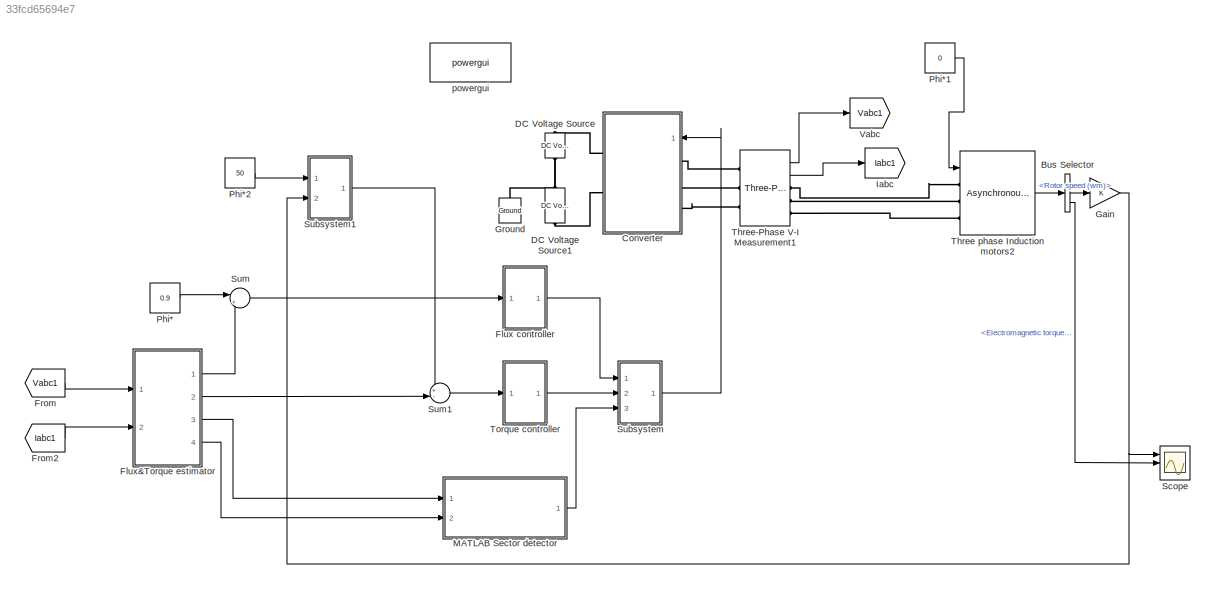
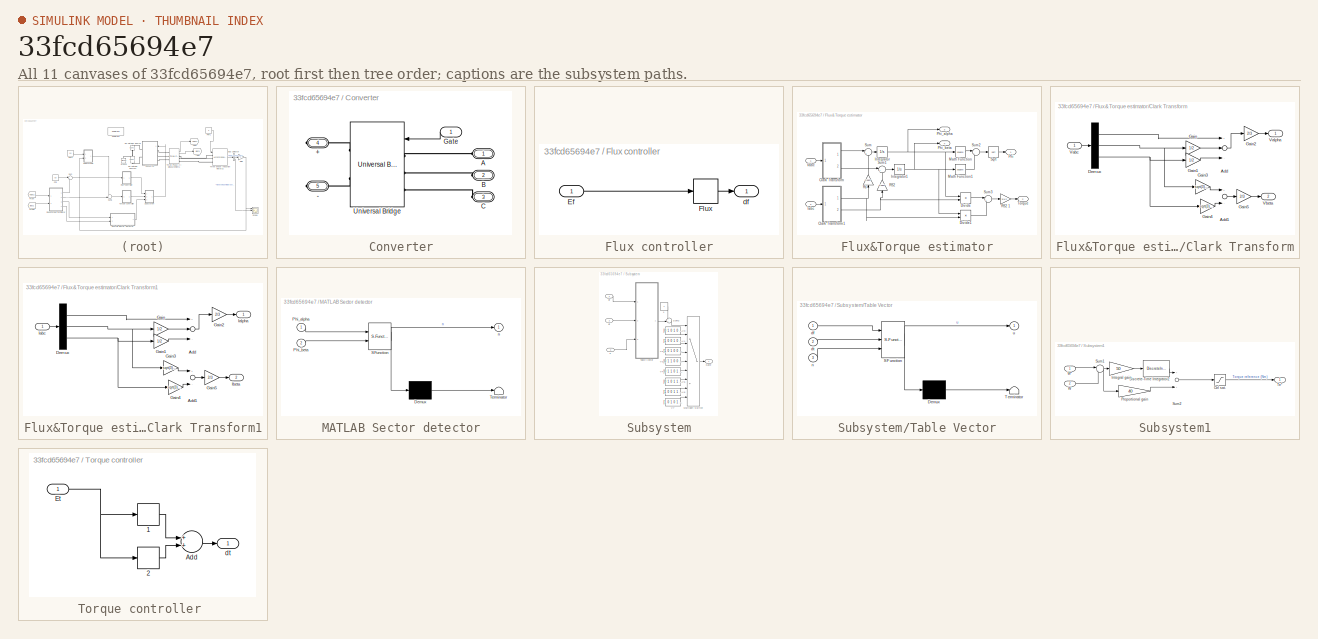
[diagram: thumbnail index - all 11 canvases of the model, root first then tree order]
MODEL slx_33fcd65694e7
KIND model
BLOCK [BusSelector] Bus Selector
  OutputSignals = Stator measurements.Stator current is_a (A),Mechanical.Rotor speed (wm),Mechanical.Electromagnetic torque Te (N*m)
  Ports = [1, 3]
BLOCK [SubSystem] Converter
  FunctionWithSeparateData = off
  MaskHideContents = off
  MinAlgLoopOccurrences = off
  Opaque = off
  Ports = [1, 0, 0, 0, 0, 3, 2]
  PropExecContextOutsideSubsystem = off
  RTWSystemCode = Auto
  RequestExecContextInheritance = off
  Variant = off
BLOCK [PMIOPort] Converter/+
  Port = 4
  Side = Right
BLOCK [PMIOPort] Converter/-
  Port = 5
  Side = Right
BLOCK [PMIOPort] Converter/A
  Port = 1
  Side = Left
BLOCK [PMIOPort] Converter/B
  Port = 2
  Side = Left
BLOCK [PMIOPort] Converter/C
  Port = 3
  Side = Left
BLOCK [Inport] Converter/Gate 
  IconDisplay = Port number
BLOCK [Reference] Converter/Universal Bridge  REF=powerlib/Power
Electronics/Universal Bridge
  Arms = 3
  Device = IGBT / Diodes
  ForwardVoltage = 0
  ForwardVoltages = [  0  0  ]
  GTOparameters = [ 10e-6 , 20e-6 ]
  IGBTparameters = [ 1e-6 , 2e-6 ]
  Lon = 0
  Measurements = None
  Measurements_2 = None
  Ports = [1, 0, 0, 0, 0, 3, 2]
  Ron = 1e-3
  SnubberCapacitance = inf
  SnubberResistance = 1e5
  SourceBlock = powerlib/Power\nElectronics/Universal Bridge
  SourceType = Universal Bridge
  converterType = Rectifier
BLOCK [Reference] DC Voltage Source  REF=powerlib/Electrical
Sources/DC Voltage Source
  Amplitude = 250
  Measurements = None
  Ports = [0, 0, 0, 0, 0, 1, 1]
  SourceBlock = powerlib/Electrical\nSources/DC Voltage Source
  SourceType = DC Voltage Source
BLOCK [Reference] DC Voltage Source1  REF=powerlib/Electrical
Sources/DC Voltage Source
  Amplitude = 250
  Measurements = None
  Ports = [0, 0, 0, 0, 0, 1, 1]
  SourceBlock = powerlib/Electrical\nSources/DC Voltage Source
  SourceType = DC Voltage Source
BLOCK [SubSystem] Flux controller
  FunctionWithSeparateData = off
  MaskHideContents = off
  MinAlgLoopOccurrences = off
  Opaque = off
  Ports = [1, 1]
  PropExecContextOutsideSubsystem = off
  RTWSystemCode = Auto
  RequestExecContextInheritance = off
  Variant = off
BLOCK [Inport] Flux controller/Ef
  IconDisplay = Port number
BLOCK [Relay] Flux controller/Flux
  InputProcessing = Elements as channels (sample based)
  OffSwitchValue = -0.005
  OnSwitchValue = 0.005
BLOCK [Outport] Flux controller/df
  IconDisplay = Port number
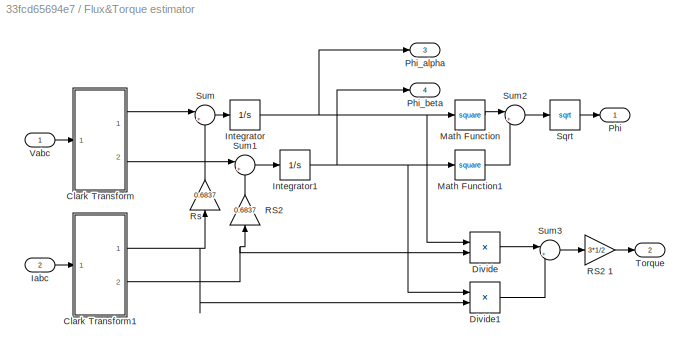
BLOCK [SubSystem] Flux&Torque estimator
  FunctionWithSeparateData = off
  MaskHideContents = off
  MinAlgLoopOccurrences = off
  Opaque = off
  Ports = [2, 4]
  PropExecContextOutsideSubsystem = off
  RTWSystemCode = Auto
  RequestExecContextInheritance = off
  Variant = off
BLOCK [SubSystem] Flux&Torque estimator/Clark Transform
  FunctionWithSeparateData = off
  MaskHideContents = off
  MinAlgLoopOccurrences = off
  Opaque = off
  Ports = [1, 2]
  PropExecContextOutsideSubsystem = off
  RTWSystemCode = Auto
  RequestExecContextInheritance = off
  Variant = off
BLOCK [Sum] Flux&Torque estimator/Clark Transform/Add
  InputSameDT = off
  Inputs = +--
  OutDataTypeStr = Inherit: Inherit via internal rule
  Ports = [3, 1]
  SaturateOnIntegerOverflow = off
BLOCK [Sum] Flux&Torque estimator/Clark Transform/Add1
  InputSameDT = off
  Inputs = +-
  OutDataTypeStr = Inherit: Inherit via internal rule
  Ports = [2, 1]
  SaturateOnIntegerOverflow = off
BLOCK [Demux] Flux&Torque estimator/Clark Transform/Demux
  DisplayOption = bar
  Outputs = 3
  Ports = [1, 3]
BLOCK [Gain] Flux&Torque estimator/Clark Transform/Gain
  Gain = 1/2
  OutDataTypeStr = Inherit: Inherit via internal rule
  ParamDataTypeStr = Inherit: Inherit via internal rule
  SaturateOnIntegerOverflow = off
BLOCK [Gain] Flux&Torque estimator/Clark Transform/Gain1
  Gain = 1/2
  OutDataTypeStr = Inherit: Inherit via internal rule
  ParamDataTypeStr = Inherit: Inherit via internal rule
  SaturateOnIntegerOverflow = off
BLOCK [Gain] Flux&Torque estimator/Clark Transform/Gain2
  Gain = 2/3
  OutDataTypeStr = Inherit: Inherit via internal rule
  ParamDataTypeStr = Inherit: Inherit via internal rule
  SaturateOnIntegerOverflow = off
BLOCK [Gain] Flux&Torque estimator/Clark Transform/Gain3
  Gain = sqrt(3)/2
  OutDataTypeStr = Inherit: Inherit via internal rule
  ParamDataTypeStr = Inherit: Inherit via internal rule
  SaturateOnIntegerOverflow = off
BLOCK [Gain] Flux&Torque estimator/Clark Transform/Gain4
  Gain = sqrt(3)/2
  OutDataTypeStr = Inherit: Inherit via internal rule
  ParamDataTypeStr = Inherit: Inherit via internal rule
  SaturateOnIntegerOverflow = off
BLOCK [Gain] Flux&Torque estimator/Clark Transform/Gain5
  Gain = 2/3
  OutDataTypeStr = Inherit: Inherit via internal rule
  ParamDataTypeStr = Inherit: Inherit via internal rule
  SaturateOnIntegerOverflow = off
BLOCK [Inport] Flux&Torque estimator/Clark Transform/Vabc
  IconDisplay = Port number
BLOCK [Outport] Flux&Torque estimator/Clark Transform/Valpha
  IconDisplay = Port number
BLOCK [Outport] Flux&Torque estimator/Clark Transform/Vbeta 
  IconDisplay = Port number
  Port = 2
BLOCK [SubSystem] Flux&Torque estimator/Clark Transform1
  FunctionWithSeparateData = off
  MaskHideContents = off
  MinAlgLoopOccurrences = off
  Opaque = off
  Ports = [1, 2]
  PropExecContextOutsideSubsystem = off
  RTWSystemCode = Auto
  RequestExecContextInheritance = off
  Variant = off
BLOCK [Sum] Flux&Torque estimator/Clark Transform1/Add
  InputSameDT = off
  Inputs = +--
  OutDataTypeStr = Inherit: Inherit via internal rule
  Ports = [3, 1]
  SaturateOnIntegerOverflow = off
BLOCK [Sum] Flux&Torque estimator/Clark Transform1/Add1
  InputSameDT = off
  Inputs = +-
  OutDataTypeStr = Inherit: Inherit via internal rule
  Ports = [2, 1]
  SaturateOnIntegerOverflow = off
BLOCK [Demux] Flux&Torque estimator/Clark Transform1/Demux
  DisplayOption = bar
  Outputs = 3
  Ports = [1, 3]
BLOCK [Gain] Flux&Torque estimator/Clark Transform1/Gain
  Gain = 1/2
  OutDataTypeStr = Inherit: Inherit via internal rule
  ParamDataTypeStr = Inherit: Inherit via internal rule
  SaturateOnIntegerOverflow = off
BLOCK [Gain] Flux&Torque estimator/Clark Transform1/Gain1
  Gain = 1/2
  OutDataTypeStr = Inherit: Inherit via internal rule
  ParamDataTypeStr = Inherit: Inherit via internal rule
  SaturateOnIntegerOverflow = off
BLOCK [Gain] Flux&Torque estimator/Clark Transform1/Gain2
  Gain = 2/3
  OutDataTypeStr = Inherit: Inherit via internal rule
  ParamDataTypeStr = Inherit: Inherit via internal rule
  SaturateOnIntegerOverflow = off
BLOCK [Gain] Flux&Torque estimator/Clark Transform1/Gain3
  Gain = sqrt(3)/2
  OutDataTypeStr = Inherit: Inherit via internal rule
  ParamDataTypeStr = Inherit: Inherit via internal rule
  SaturateOnIntegerOverflow = off
BLOCK [Gain] Flux&Torque estimator/Clark Transform1/Gain4
  Gain = sqrt(3)/2
  OutDataTypeStr = Inherit: Inherit via internal rule
  ParamDataTypeStr = Inherit: Inherit via internal rule
  SaturateOnIntegerOverflow = off
BLOCK [Gain] Flux&Torque estimator/Clark Transform1/Gain5
  Gain = 2/3
  OutDataTypeStr = Inherit: Inherit via internal rule
  ParamDataTypeStr = Inherit: Inherit via internal rule
  SaturateOnIntegerOverflow = off
BLOCK [Inport] Flux&Torque estimator/Clark Transform1/Iabc
  IconDisplay = Port number
BLOCK [Outport] Flux&Torque estimator/Clark Transform1/Ialpha
  IconDisplay = Port number
BLOCK [Outport] Flux&Torque estimator/Clark Transform1/Ibeta 
  IconDisplay = Port number
  Port = 2
BLOCK [Product] Flux&Torque estimator/Divide
  InputSameDT = off
  Inputs = **
  OutDataTypeStr = Inherit: Inherit via internal rule
  Ports = [2, 1]
  RndMeth = Floor
  SaturateOnIntegerOverflow = off
BLOCK [Product] Flux&Torque estimator/Divide1
  InputSameDT = off
  Inputs = **
  OutDataTypeStr = Inherit: Inherit via internal rule
  Ports = [2, 1]
  RndMeth = Floor
  SaturateOnIntegerOverflow = off
BLOCK [Inport] Flux&Torque estimator/Iabc
  IconDisplay = Port number
  Port = 2
BLOCK [Integrator] Flux&Torque estimator/Integrator
  Ports = [1, 1]
BLOCK [Integrator] Flux&Torque estimator/Integrator1
  Ports = [1, 1]
BLOCK [Math] Flux&Torque estimator/Math Function
  Operator = square
  Ports = [1, 1]
BLOCK [Math] Flux&Torque estimator/Math Function1
  Operator = square
  Ports = [1, 1]
BLOCK [Outport] Flux&Torque estimator/Phi
  IconDisplay = Port number
BLOCK [Outport] Flux&Torque estimator/Phi_alpha
  IconDisplay = Port number
  Port = 3
BLOCK [Outport] Flux&Torque estimator/Phi_beta
  IconDisplay = Port number
  Port = 4
BLOCK [Gain] Flux&Torque estimator/RS2 
  Gain = 0.6837
  OutDataTypeStr = Inherit: Inherit via internal rule
  ParamDataTypeStr = Inherit: Inherit via internal rule
  SaturateOnIntegerOverflow = off
BLOCK [Gain] Flux&Torque estimator/RS2 1
  Gain = 3*1/2
  OutDataTypeStr = Inherit: Inherit via internal rule
  ParamDataTypeStr = Inherit: Inherit via internal rule
  SaturateOnIntegerOverflow = off
BLOCK [Gain] Flux&Torque estimator/Rs
  Gain = 0.6837
  OutDataTypeStr = Inherit: Inherit via internal rule
  ParamDataTypeStr = Inherit: Inherit via internal rule
  SaturateOnIntegerOverflow = off
BLOCK [Sqrt] Flux&Torque estimator/Sqrt
BLOCK [Sum] Flux&Torque estimator/Sum
  IconShape = round
  InputSameDT = off
  Inputs = |+-
  OutDataTypeStr = Inherit: Inherit via internal rule
  Ports = [2, 1]
  SaturateOnIntegerOverflow = off
BLOCK [Sum] Flux&Torque estimator/Sum1
  IconShape = round
  InputSameDT = off
  Inputs = |+-
  OutDataTypeStr = Inherit: Inherit via internal rule
  Ports = [2, 1]
  SaturateOnIntegerOverflow = off
BLOCK [Sum] Flux&Torque estimator/Sum2
  IconShape = round
  InputSameDT = off
  Inputs = |++
  OutDataTypeStr = Inherit: Inherit via internal rule
  Ports = [2, 1]
  SaturateOnIntegerOverflow = off
BLOCK [Sum] Flux&Torque estimator/Sum3
  IconShape = round
  InputSameDT = off
  Inputs = |+-
  OutDataTypeStr = Inherit: Inherit via internal rule
  Ports = [2, 1]
  SaturateOnIntegerOverflow = off
BLOCK [Outport] Flux&Torque estimator/Torque
  IconDisplay = Port number
  Port = 2
BLOCK [Inport] Flux&Torque estimator/Vabc
  IconDisplay = Port number
BLOCK [From] From
  GotoTag = Vabc1
BLOCK [From] From2
  GotoTag = Iabc1
BLOCK [Gain] Gain
  OutDataTypeStr = Inherit: Inherit via internal rule
  ParamDataTypeStr = Inherit: Inherit via internal rule
  SaturateOnIntegerOverflow = off
BLOCK [Reference] Ground  REF=powerlib/Elements/Ground
  LConnTagsString = a
  Ports = [0, 0, 0, 0, 0, 1]
  SourceBlock = powerlib/Elements/Ground
  SourceType = Ground
BLOCK [Goto] Iabc
  GotoTag = Iabc1
BLOCK [SubSystem] MATLAB Sector detector
  ErrorFcn = Stateflow.Translate.translate
  FunctionWithSeparateData = off
  MaskHideContents = off
  MinAlgLoopOccurrences = off
  Opaque = off
  PermitHierarchicalResolution = ParametersOnly
  Ports = [2, 1]
  PropExecContextOutsideSubsystem = off
  RTWSystemCode = Auto
  RequestExecContextInheritance = off
  SFBlockType = MATLAB Function
  TreatAsAtomicUnit = on
  Variant = off
BLOCK [Demux] MATLAB Sector detector/ Demux 
  Outputs = 1
  Ports = [1, 1]
BLOCK [S-Function] MATLAB Sector detector/ SFunction 
  EnableBusSupport = on
  FunctionName = sf_sfun
  PortCounts = [2 2]
  Ports = [2, 2]
  SFunctionDeploymentMode = off
  Tag = Stateflow S-Function untitled2013a 2
BLOCK [Terminator] MATLAB Sector detector/ Terminator 
BLOCK [Inport] MATLAB Sector detector/Phi_alpha
  IconDisplay = Port number
BLOCK [Inport] MATLAB Sector detector/Phi_beta
  IconDisplay = Port number
  Port = 2
BLOCK [Outport] MATLAB Sector detector/n
  IconDisplay = Port number
BLOCK [Constant] Phi*
  Value = 0.9
BLOCK [Constant] Phi*1
  Value = 0
BLOCK [Constant] Phi*2
  Value = 50
BLOCK [Scope] Scope
  DataFormat = StructureWithTime
  Decimation = 1
  Grid = on
  LimitDataPoints = off
  MaxDataPoints = 5000
  NumInputPorts = 3
  Ports = [3]
  SampleInput = off
  SampleTime = -1
  SaveName = ScopeData
  SaveToWorkspace = on
  ShowLegends = off
  TickLabels = OneTimeTick
  TimeRange = auto
  YMax = 144.23311~146.13243~1.00000
  YMin = -16.0259~-157.28143~-1.00000
  ZoomMode = on
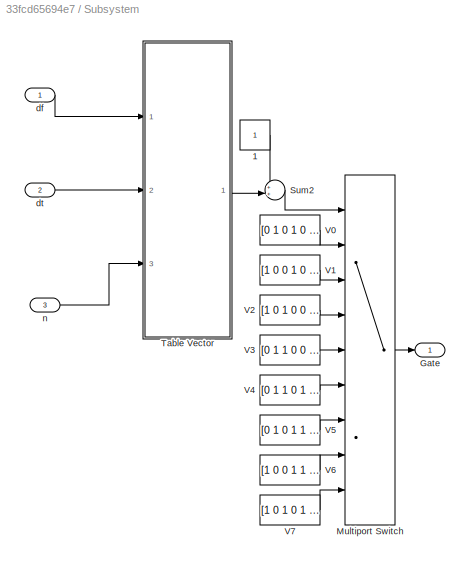
BLOCK [SubSystem] Subsystem
  FunctionWithSeparateData = off
  MaskHideContents = off
  MinAlgLoopOccurrences = off
  Opaque = off
  Ports = [3, 1]
  PropExecContextOutsideSubsystem = off
  RTWSystemCode = Auto
  RequestExecContextInheritance = off
  Variant = off
BLOCK [Constant] Subsystem/1
BLOCK [Outport] Subsystem/Gate
  IconDisplay = Port number
BLOCK [MultiPortSwitch] Subsystem/Multiport Switch
  InputSameDT = off
  Inputs = 8
  Ports = [9, 1]
  SaturateOnIntegerOverflow = off
BLOCK [Sum] Subsystem/Sum2
  IconShape = round
  InputSameDT = off
  Inputs = ++|
  OutDataTypeStr = Inherit: Inherit via internal rule
  Ports = [2, 1]
  SaturateOnIntegerOverflow = off
BLOCK [SubSystem] Subsystem/Table Vector
  ErrorFcn = Stateflow.Translate.translate
  FunctionWithSeparateData = off
  MaskHideContents = off
  MinAlgLoopOccurrences = off
  Opaque = off
  PermitHierarchicalResolution = ParametersOnly
  Ports = [3, 1]
  PropExecContextOutsideSubsystem = off
  RTWSystemCode = Auto
  RequestExecContextInheritance = off
  SFBlockType = MATLAB Function
  TreatAsAtomicUnit = on
  Variant = off
BLOCK [Demux] Subsystem/Table Vector/ Demux 
  Outputs = 1
  Ports = [1, 1]
BLOCK [S-Function] Subsystem/Table Vector/ SFunction 
  EnableBusSupport = on
  FunctionName = sf_sfun
  PortCounts = [3 2]
  Ports = [3, 2]
  SFunctionDeploymentMode = off
  Tag = Stateflow S-Function untitled2013a 1
BLOCK [Terminator] Subsystem/Table Vector/ Terminator 
BLOCK [Inport] Subsystem/Table Vector/df
  IconDisplay = Port number
BLOCK [Inport] Subsystem/Table Vector/dt
  IconDisplay = Port number
  Port = 2
BLOCK [Inport] Subsystem/Table Vector/n
  IconDisplay = Port number
  Port = 3
BLOCK [Outport] Subsystem/Table Vector/u
  IconDisplay = Port number
BLOCK [Constant] Subsystem/V0
  Value = [0 1 0 1 0 1]
BLOCK [Constant] Subsystem/V1
  Value = [1 0 0 1 0 1]
BLOCK [Constant] Subsystem/V2
  Value = [1 0 1 0 0 1]
BLOCK [Constant] Subsystem/V3 
  Value = [0 1 1 0 0 1]
BLOCK [Constant] Subsystem/V4
  Value = [0 1 1 0 1 0]
BLOCK [Constant] Subsystem/V5
  Value = [0 1 0 1 1 0]
BLOCK [Constant] Subsystem/V6
  Value = [1 0 0 1 1 0]
BLOCK [Constant] Subsystem/V7
  Value = [1 0 1 0 1 0]
BLOCK [Inport] Subsystem/df
  IconDisplay = Port number
BLOCK [Inport] Subsystem/dt
  IconDisplay = Port number
  Port = 2
BLOCK [Inport] Subsystem/n
  IconDisplay = Port number
  Port = 3
BLOCK [SubSystem] Subsystem1
  FunctionWithSeparateData = off
  MaskHideContents = off
  MinAlgLoopOccurrences = off
  Opaque = off
  Ports = [2, 1]
  PropExecContextOutsideSubsystem = off
  RTWSystemCode = Auto
  RequestExecContextInheritance = off
  Variant = off
BLOCK [Saturate] Subsystem1/Ctrl sat.
  InputPortMap = u0
  LowerLimit = -2000
  Ports = [1, 1]
  UpperLimit = 1e6
BLOCK [DiscreteIntegrator] Subsystem1/Discrete-Time Integrator2
  ICPrevOutput = DiscIntNeverNeededParam
  ICPrevScaledInput = DiscIntNeverNeededParam
  IntegratorMethod = Integration: Trapezoidal
  LowerSaturationLimit = ctrl_sat(1)
  Ports = [1, 1]
  SampleTime = -1
  UpperSaturationLimit = ctrl_sat(2)
BLOCK [Gain] Subsystem1/Integral gain
  Gain = 50
BLOCK [Gain] Subsystem1/Proportional gain
  Gain = 40
BLOCK [Sum] Subsystem1/Sum1
  IconShape = round
  Inputs = |+-
  Ports = [2, 1]
BLOCK [Sum] Subsystem1/Sum2
  Ports = [2, 1]
BLOCK [Outport] Subsystem1/Te*
  IconDisplay = Port number
BLOCK [Inport] Subsystem1/W
  IconDisplay = Port number
  Port = 2
BLOCK [Inport] Subsystem1/W*
  IconDisplay = Port number
BLOCK [Sum] Sum
  IconShape = round
  InputSameDT = off
  Inputs = |+-
  OutDataTypeStr = Inherit: Inherit via internal rule
  Ports = [2, 1]
  SaturateOnIntegerOverflow = off
BLOCK [Sum] Sum1
  IconShape = round
  InputSameDT = off
  Inputs = +-|
  OutDataTypeStr = Inherit: Inherit via internal rule
  Ports = [2, 1]
  SaturateOnIntegerOverflow = off
BLOCK [Reference] Three phase Induction motors2  REF=powerlib/Machines/Asynchronous Machine
SI Units
  Cage1 = [0.4155 0.002066]
  Cage2 = [0.4168 0.0003495]
  InitialConditions = [1 0 0 0 0 0 0 0]
  IterativeDiscreteModel = Trapezoidal iterative (alg. loop)
  IterativeModel = Trapezoidal non iterative
  Lm = 0.1486
  LoadFlowParameters = 1492000
  MeasurementBus = off
  Mechanical = [0.05 0.02791 1]
  MechanicalLoad = Torque Tm
  NominalParameters = [500000 460 60]
  Pmec = 1.492e+006
  PolePairs = 2
  Ports = [1, 1, 0, 0, 0, 3]
  PresetModel = No
  ReferenceFrame = Rotor
  Rotor = [0.451 0.004152]
  RotorType = Squirrel-cage
  Saturation = [14.03593122, 27.81365428, 53.79336849, 72.68890987, 97.98006896, 148.6815601, 215.7428561, 302.9841135, 428.7778367 ; 230, 322, 414, 460, 506, 552, 598, 644, 690]
  ShowDetailedParameters = on
  SimulateSaturation = off
  SourceBlock = powerlib/Machines/Asynchronous Machine\nSI Units
  SourceType = Asynchronous Machine
  Stator = [0.6837 0.004152]
  TsBlock = 2*10^-6
  TsPowergui = 0
  Units = SI
BLOCK [Reference] Three-Phase V-I Measurement1  REF=powerlib/Measurements/Three-Phase
V-I Measurement
  CurrentMeasurement = yes
  Ipu = off
  LabelI = Iabc
  LabelV = Vabc
  OutputType = Complex
  PSBequivalent = 0
  Pbase = 100e6
  PhasorSimulation = off
  Ports = [0, 2, 0, 0, 0, 3, 3]
  SetLabelI = off
  SetLabelV = off
  SourceBlock = powerlib/Measurements/Three-Phase\nV-I Measurement
  SourceType = Three-Phase VI Measurement
  Vbase = 500e3
  VoltageMeasurement = phase-to-ground
  Vpu = off
  VpuLL = off
BLOCK [SubSystem] Torque controller 
  FunctionWithSeparateData = off
  MaskHideContents = off
  MinAlgLoopOccurrences = off
  Opaque = off
  Ports = [1, 1]
  PropExecContextOutsideSubsystem = off
  RTWSystemCode = Auto
  RequestExecContextInheritance = off
  Variant = off
BLOCK [Relay] Torque controller /1 
  InputProcessing = Elements as channels (sample based)
  OffSwitchValue = 0
  OnSwitchValue = 1
BLOCK [Relay] Torque controller /2
  InputProcessing = Elements as channels (sample based)
  OffOutputValue = -1
  OffSwitchValue = -1
  OnOutputValue = 0
  OnSwitchValue = 0
BLOCK [Sum] Torque controller /Add
  InputSameDT = off
  OutDataTypeStr = Inherit: Inherit via internal rule
  Ports = [2, 1]
  SaturateOnIntegerOverflow = off
BLOCK [Inport] Torque controller /Et
  IconDisplay = Port number
BLOCK [Outport] Torque controller /dt
  IconDisplay = Port number
BLOCK [Goto] Vabc
  GotoTag = Vabc1
BLOCK [Reference] powergui  REF=powerlib/powergui
  DisableRonSwitches = off
  DisableSnubberDevices = off
  DisableVfSwitches = off
  DisplayEquations = off
  DisplayStyle = 1
  EnableUseOfTLC = off
  ErrMax = 1e-4
  ExternalGateDelay = off
  Frange = [0:2:500]
  FreqAxis = off
  FunctionMessages = off
  HookPort = off
  Interpol = off
  Iterations = 50
  MaxFrequency = 1000
  Pbase = 100e6
  Ports = []
  Priority = 1
  ResistiveCurrentMeasurement = off
  RestoreLinks = warning
  RmsSteady = 1
  SPID = on
  SampleTime = 2e-6
  ShowGrid = off
  SolverType = Backward Euler
  SourceBlock = powerlib/powergui
  SourceType = PSB option menu block
  StartTime = 0.0
  SwTol = 0
  Ts = 100
  UnitsV = kV
  UnitsW = MW
  Xlog = on
  Ylog = off
  ZoomFFT = off
  buscounter = 0
  cycles = 1
  display = off
  echomessages = off
  frequency = 60
  frequencyindice = 0
  frequencyindicesteady = 1
  fundamental = 60
  methode = off
  save = off
  structure = 0
  variable = ZData
  x0status = blocks
LINE Bus Selector:2 -> Gain:1
LINE Bus Selector:3 -> Scope:2
LINE Converter/Gate :1 -> Converter/Universal Bridge:1
LINE Flux controller/Ef:1 -> Flux controller/Flux:1
LINE Flux controller/Flux:1 -> Flux controller/df:1
LINE Flux controller:1 -> Subsystem:1
LINE Flux&Torque estimator/Clark Transform/Add1:1 -> Flux&Torque estimator/Clark Transform/Gain5:1
LINE Flux&Torque estimator/Clark Transform/Add:1 -> Flux&Torque estimator/Clark Transform/Gain2:1
LINE Flux&Torque estimator/Clark Transform/Demux:1 -> Flux&Torque estimator/Clark Transform/Add:1
NET Flux&Torque estimator/Clark Transform/Demux:2 -> Flux&Torque estimator/Clark Transform/Gain3:1, Flux&Torque estimator/Clark Transform/Gain:1
NET Flux&Torque estimator/Clark Transform/Demux:3 -> Flux&Torque estimator/Clark Transform/Gain1:1, Flux&Torque estimator/Clark Transform/Gain4:1
LINE Flux&Torque estimator/Clark Transform/Gain1:1 -> Flux&Torque estimator/Clark Transform/Add:3
LINE Flux&Torque estimator/Clark Transform/Gain2:1 -> Flux&Torque estimator/Clark Transform/Valpha:1
LINE Flux&Torque estimator/Clark Transform/Gain3:1 -> Flux&Torque estimator/Clark Transform/Add1:1
LINE Flux&Torque estimator/Clark Transform/Gain4:1 -> Flux&Torque estimator/Clark Transform/Add1:2
LINE Flux&Torque estimator/Clark Transform/Gain5:1 -> Flux&Torque estimator/Clark Transform/Vbeta :1
LINE Flux&Torque estimator/Clark Transform/Gain:1 -> Flux&Torque estimator/Clark Transform/Add:2
LINE Flux&Torque estimator/Clark Transform/Vabc:1 -> Flux&Torque estimator/Clark Transform/Demux:1
LINE Flux&Torque estimator/Clark Transform1/Add1:1 -> Flux&Torque estimator/Clark Transform1/Gain5:1
LINE Flux&Torque estimator/Clark Transform1/Add:1 -> Flux&Torque estimator/Clark Transform1/Gain2:1
LINE Flux&Torque estimator/Clark Transform1/Demux:1 -> Flux&Torque estimator/Clark Transform1/Add:1
NET Flux&Torque estimator/Clark Transform1/Demux:2 -> Flux&Torque estimator/Clark Transform1/Gain3:1, Flux&Torque estimator/Clark Transform1/Gain:1
NET Flux&Torque estimator/Clark Transform1/Demux:3 -> Flux&Torque estimator/Clark Transform1/Gain1:1, Flux&Torque estimator/Clark Transform1/Gain4:1
LINE Flux&Torque estimator/Clark Transform1/Gain1:1 -> Flux&Torque estimator/Clark Transform1/Add:3
LINE Flux&Torque estimator/Clark Transform1/Gain2:1 -> Flux&Torque estimator/Clark Transform1/Ialpha:1
LINE Flux&Torque estimator/Clark Transform1/Gain3:1 -> Flux&Torque estimator/Clark Transform1/Add1:1
LINE Flux&Torque estimator/Clark Transform1/Gain4:1 -> Flux&Torque estimator/Clark Transform1/Add1:2
LINE Flux&Torque estimator/Clark Transform1/Gain5:1 -> Flux&Torque estimator/Clark Transform1/Ibeta :1
LINE Flux&Torque estimator/Clark Transform1/Gain:1 -> Flux&Torque estimator/Clark Transform1/Add:2
LINE Flux&Torque estimator/Clark Transform1/Iabc:1 -> Flux&Torque estimator/Clark Transform1/Demux:1
NET Flux&Torque estimator/Clark Transform1:1 -> Flux&Torque estimator/Divide1:2, Flux&Torque estimator/Rs:1
NET Flux&Torque estimator/Clark Transform1:2 -> Flux&Torque estimator/Divide:2, Flux&Torque estimator/RS2 :1
LINE Flux&Torque estimator/Clark Transform:1 -> Flux&Torque estimator/Sum:1
LINE Flux&Torque estimator/Clark Transform:2 -> Flux&Torque estimator/Sum1:1
LINE Flux&Torque estimator/Divide1:1 -> Flux&Torque estimator/Sum3:2
LINE Flux&Torque estimator/Divide:1 -> Flux&Torque estimator/Sum3:1
LINE Flux&Torque estimator/Iabc:1 -> Flux&Torque estimator/Clark Transform1:1
NET Flux&Torque estimator/Integrator1:1 -> Flux&Torque estimator/Divide1:1, Flux&Torque estimator/Math Function1:1, Flux&Torque estimator/Phi_beta:1
NET Flux&Torque estimator/Integrator:1 -> Flux&Torque estimator/Divide:1, Flux&Torque estimator/Math Function:1, Flux&Torque estimator/Phi_alpha:1
LINE Flux&Torque estimator/Math Function1:1 -> Flux&Torque estimator/Sum2:2
LINE Flux&Torque estimator/Math Function:1 -> Flux&Torque estimator/Sum2:1
LINE Flux&Torque estimator/RS2 1:1 -> Flux&Torque estimator/Torque:1
LINE Flux&Torque estimator/RS2 :1 -> Flux&Torque estimator/Sum1:2
LINE Flux&Torque estimator/Rs:1 -> Flux&Torque estimator/Sum:2
LINE Flux&Torque estimator/Sqrt:1 -> Flux&Torque estimator/Phi:1
LINE Flux&Torque estimator/Sum1:1 -> Flux&Torque estimator/Integrator1:1
LINE Flux&Torque estimator/Sum2:1 -> Flux&Torque estimator/Sqrt:1
LINE Flux&Torque estimator/Sum3:1 -> Flux&Torque estimator/RS2 1:1
LINE Flux&Torque estimator/Sum:1 -> Flux&Torque estimator/Integrator:1
LINE Flux&Torque estimator/Vabc:1 -> Flux&Torque estimator/Clark Transform:1
LINE Flux&Torque estimator:1 -> Sum:2
LINE Flux&Torque estimator:2 -> Sum1:2
LINE Flux&Torque estimator:3 -> MATLAB Sector detector:1
LINE Flux&Torque estimator:4 -> MATLAB Sector detector:2
LINE From2:1 -> Flux&Torque estimator:2
LINE From:1 -> Flux&Torque estimator:1
NET Gain:1 -> Scope:1, Subsystem1:2
LINE MATLAB Sector detector:1 -> Subsystem:3
LINE Phi*1:1 -> Three phase Induction motors2:1
LINE Phi*2:1 -> Subsystem1:1
LINE Phi*:1 -> Sum:1
LINE Subsystem/1:1 -> Subsystem/Sum2:1
LINE Subsystem/Multiport Switch:1 -> Subsystem/Gate:1
LINE Subsystem/Sum2:1 -> Subsystem/Multiport Switch:1
LINE Subsystem/Table Vector:1 -> Subsystem/Sum2:2
LINE Subsystem/V0:1 -> Subsystem/Multiport Switch:2
LINE Subsystem/V1:1 -> Subsystem/Multiport Switch:3
LINE Subsystem/V2:1 -> Subsystem/Multiport Switch:4
LINE Subsystem/V3 :1 -> Subsystem/Multiport Switch:5
LINE Subsystem/V4:1 -> Subsystem/Multiport Switch:6
LINE Subsystem/V5:1 -> Subsystem/Multiport Switch:7
LINE Subsystem/V6:1 -> Subsystem/Multiport Switch:8
LINE Subsystem/V7:1 -> Subsystem/Multiport Switch:9
LINE Subsystem/df:1 -> Subsystem/Table Vector:1
LINE Subsystem/dt:1 -> Subsystem/Table Vector:2
LINE Subsystem/n:1 -> Subsystem/Table Vector:3
LINE Subsystem1/Ctrl sat.:1 -> Subsystem1/Te*:1
LINE Subsystem1/Discrete-Time Integrator2:1 -> Subsystem1/Sum2:1
LINE Subsystem1/Integral gain:1 -> Subsystem1/Discrete-Time Integrator2:1
LINE Subsystem1/Proportional gain:1 -> Subsystem1/Sum2:2
NET Subsystem1/Sum1:1 -> Subsystem1/Integral gain:1, Subsystem1/Proportional gain:1
LINE Subsystem1/Sum2:1 -> Subsystem1/Ctrl sat.:1
LINE Subsystem1/W*:1 -> Subsystem1/Sum1:1
LINE Subsystem1/W:1 -> Subsystem1/Sum1:2
LINE Subsystem1:1 -> Sum1:1
LINE Subsystem:1 -> Converter:1
LINE Sum1:1 -> Torque controller :1
LINE Sum:1 -> Flux controller:1
LINE Three phase Induction motors2:1 -> Bus Selector:1
LINE Three-Phase V-I Measurement1:1 -> Vabc:1
LINE Three-Phase V-I Measurement1:2 -> Iabc:1
LINE Torque controller /1 :1 -> Torque controller /Add:1
LINE Torque controller /2:1 -> Torque controller /Add:2
LINE Torque controller /Add:1 -> Torque controller /dt:1
NET Torque controller /Et:1 -> Torque controller /1 :1, Torque controller /2:1
LINE Torque controller :1 -> Subsystem:2
PLINE Converter/+:RConn1 -- Converter/Universal Bridge:RConn1
PLINE Converter/-:RConn1 -- Converter/Universal Bridge:RConn2
PLINE Converter/A:RConn1 -- Converter/Universal Bridge:LConn1
PLINE Converter/B:RConn1 -- Converter/Universal Bridge:LConn2
PLINE Converter/C:RConn1 -- Converter/Universal Bridge:LConn3
PLINE Converter:LConn1 -- Three-Phase V-I Measurement1:LConn1
PLINE Converter:LConn2 -- Three-Phase V-I Measurement1:LConn2
PLINE Converter:LConn3 -- Three-Phase V-I Measurement1:LConn3
PLINE Converter:RConn1 -- DC Voltage Source:RConn1
PLINE Converter:RConn2 -- DC Voltage Source1:LConn1
PNET net1: DC Voltage Source1:RConn1 -- DC Voltage Source:LConn1 -- Ground:LConn1
PLINE Three phase Induction motors2:LConn1 -- Three-Phase V-I Measurement1:RConn1
PLINE Three phase Induction motors2:LConn2 -- Three-Phase V-I Measurement1:RConn2
PLINE Three phase Induction motors2:LConn3 -- Three-Phase V-I Measurement1:RConn3
note: NET lines group one-source signal fan-out (src -> all destinations, sorted); 1:1 wires keep LINE; PNET lines group multi-terminal physical nets as a canonical sorted terminal list (undirected conserving connections); 2-terminal nets keep the pairwise PLINE form
